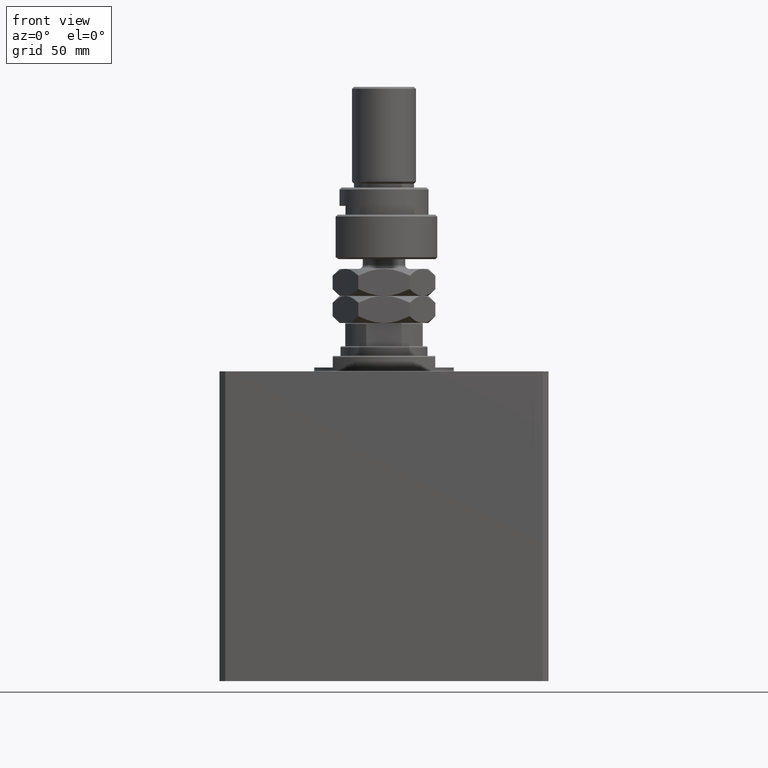
[diagram: clean part render]
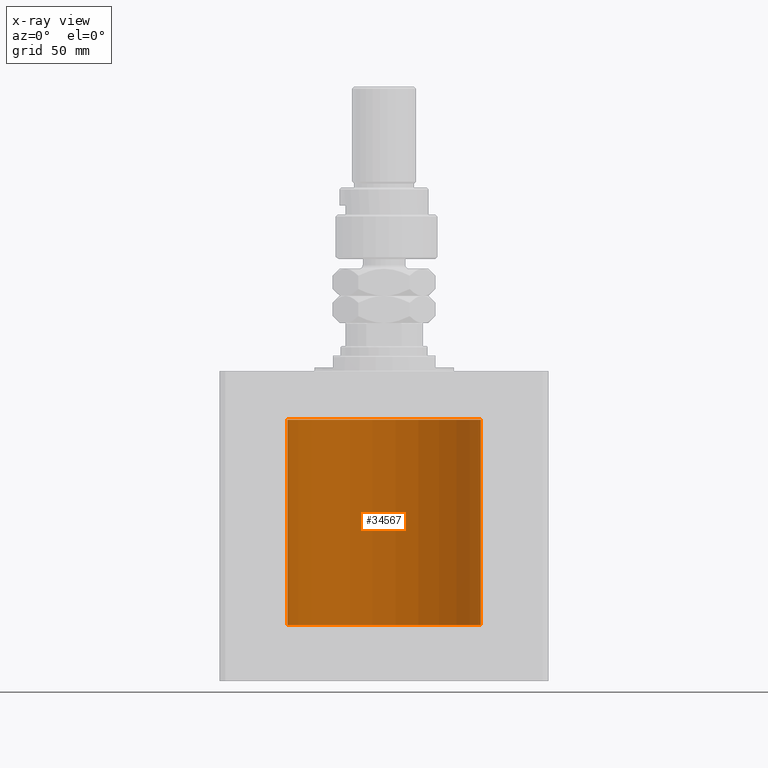
[diagram: x-ray — body ghosted, one internal face saturated and labeled with its STEP entity id]
A machine part, front view, then the same camera in x-ray: the body is ghosted and one INTERNAL B-rep face — a face not visible from any outside direction — is saturated and labeled: STEP entity #34567.
In plain terms, the highlighted cylindrical surface (partial cylindrical patch) has radius 50 mm, axis along (0, 0, 1).
Its self-contained STEP definition (entity closure, byte-faithful):
#219 = B_SPLINE_CURVE_WITH_KNOTS ( 'NONE', 3,
 ( #8694, #12773, #9161, #16369, #30332, #1490, #31032, #37991, #30561, #38467, #27652, #1256, #38226, #5563, #12073, #31264, #33921, #5087, #45205, #8925, #26710, #45677, #42069, #20213, #44967, #41365, #8463, #45917, #1731, #12306 ),
 .UNSPECIFIED., .F., .F.,
 ( 4, 2, 2, 2, 2, 2, 2, 2, 2, 2, 2, 2, 2, 2, 4 ),
 ( 1.951448278188101682E-19, 0.0003908460679639682526, 0.0007816921359279362883, 0.001172538203891904324, 0.001563384271855872360, 0.002345076407783809082, 0.003126768543711746021, 0.003517614611675714056, 0.003908460679639682092, 0.004299306747603650128, 0.004690152815567618164, 0.005080998883531586199, 0.005471844951495554235, 0.005862691019459522271, 0.006253537087423490307 ),
 .UNSPECIFIED. ) ;
#929 = CIRCLE ( 'NONE', #28533, 50.00000000000000000 ) ;
#1256 = CARTESIAN_POINT ( 'NONE',  ( -49.96216141728076821, 1.947404903100933504, -36.47512611661414184 ) ) ;
#1482 = EDGE_LOOP ( 'NONE', ( #35343, #30857, #8451, #39054, #24275, #16182, #19115, #11795, #15632 ) ) ;
#1490 = CARTESIAN_POINT ( 'NONE',  ( -49.99227820941651146, 0.8870121366447422107, -35.20266925059756602 ) ) ;
#1652 = AXIS2_PLACEMENT_3D ( 'NONE', #42496, #16559, #24712 ) ;
#1731 = CARTESIAN_POINT ( 'NONE',  ( -50.00000000000001421, 0.1305374531515847703, -38.99999999999999289 ) ) ;
#2087 = VERTEX_POINT ( 'NONE', #11383 ) ;
#2143 = DIRECTION ( 'NONE',  ( -0.000000000000000000, -0.000000000000000000, 1.000000000000000000 ) ) ;
#2549 = CARTESIAN_POINT ( 'NONE',  ( 49.97475596784978080, 1.590287868744626465, -121.7801793296755051 ) ) ;
#2626 = LINE ( 'NONE', #16794, #5386 ) ;
#3267 = CARTESIAN_POINT ( 'NONE',  ( 49.96993720661966876, 1.735115303979041013, -121.9968286013222638 ) ) ;
#3455 = CARTESIAN_POINT ( 'NONE',  ( -50.00000000000000000, -9.003882097956092458E-15, -34.99999999999999289 ) ) ;
#3724 = LINE ( 'NONE', #21732, #41449 ) ;
#4702 = VECTOR ( 'NONE', #13079, 1000.000000000000000 ) ;
#5087 = CARTESIAN_POINT ( 'NONE',  ( -49.96768660357033554, 1.798001154690308967, -37.88564223843271606 ) ) ;
#5386 = VECTOR ( 'NONE', #5989, 1000.000000000000000 ) ;
#5563 = CARTESIAN_POINT ( 'NONE',  ( -49.95998213453558634, 2.000046279225707213, -37.12975027192857880 ) ) ;
#5989 = DIRECTION ( 'NONE',  ( -0.000000000000000000, -0.000000000000000000, 1.000000000000000000 ) ) ;
#6147 = CARTESIAN_POINT ( 'NONE',  ( 49.96051123778291725, 1.986950357331387140, -122.7370861026879680 ) ) ;
#6174 = VERTEX_POINT ( 'NONE', #35915 ) ;
#6226 = CARTESIAN_POINT ( 'NONE',  ( -50.00000000000000000, 6.123233995736766085E-15, -131.0999999999999943 ) ) ;
#6387 = CARTESIAN_POINT ( 'NONE',  ( 49.99746746122490038, 0.5192910711913449884, -121.0641786156605662 ) ) ;
#6863 = CARTESIAN_POINT ( 'NONE',  ( 49.96398801900035380, 1.898003203340656198, -122.3559911791024462 ) ) ;
#8451 = ORIENTED_EDGE ( 'NONE', *, *, #12406, .T. ) ;
#8463 = CARTESIAN_POINT ( 'NONE',  ( -49.99746633848589283, 0.5194059499681270564, -38.93579253716512767 ) ) ;
#8694 = CARTESIAN_POINT ( 'NONE',  ( -50.00000000000000000, -9.003882097956092458E-15, -34.99999999999999289 ) ) ;
#8925 = CARTESIAN_POINT ( 'NONE',  ( -49.97474787754178749, 1.590541763713786860, -38.21949285922860184 ) ) ;
#9161 = CARTESIAN_POINT ( 'NONE',  ( -49.99947640732126786, 0.2621063239499291098, -35.01297064418641014 ) ) ;
#9847 = EDGE_CURVE ( 'NONE', #6174, #17873, #2626, .T. ) ;
#9862 = CARTESIAN_POINT ( 'NONE',  ( 49.97475955401471026, 1.599209500590069943, -124.2290851407538810 ) ) ;
#10458 = CARTESIAN_POINT ( 'NONE',  ( 49.95998398718716516, 2.000000000000563549, -123.0000000000000000 ) ) ;
#10588 = B_SPLINE_CURVE_WITH_KNOTS ( 'NONE', 3,
 ( #10458, #46501, #6147, #25112, #6863, #21517, #3267, #2549, #35207, #13596, #28248, #31619, #28007, #17910, #6387, #46269, #16955, #32570 ),
 .UNSPECIFIED., .F., .F.,
 ( 4, 2, 2, 2, 2, 2, 2, 2, 4 ),
 ( 0.003127478965430518024, 0.003518236230679781373, 0.003908993495929044722, 0.004299750761178307637, 0.004690508026427571420, 0.005081265291676834335, 0.005472022556926097250, 0.005862779822175361033, 0.006253537087424623948 ),
 .UNSPECIFIED. ) ;
#11383 = CARTESIAN_POINT ( 'NONE',  ( -50.00000000000000000, 6.123233995736766085E-15, -24.99999999999999289 ) ) ;
#11795 = ORIENTED_EDGE ( 'NONE', *, *, #14416, .F. ) ;
#12073 = CARTESIAN_POINT ( 'NONE',  ( -49.96050770337905789, 1.987038794023258559, -37.26226128698008466 ) ) ;
#12096 = FACE_OUTER_BOUND ( 'NONE', #1482, .T. ) ;
#12233 = VERTEX_POINT ( 'NONE', #21291 ) ;
#12306 = CARTESIAN_POINT ( 'NONE',  ( -50.00000000000000000, 6.123233989258355553E-15, -38.99999999999999289 ) ) ;
#12406 = EDGE_CURVE ( 'NONE', #21985, #33911, #15973, .T. ) ;
#12773 = CARTESIAN_POINT ( 'NONE',  ( -50.00000000000000711, 0.1321588334531834663, -34.99999999999998579 ) ) ;
#12953 = EDGE_CURVE ( 'NONE', #21985, #23443, #17659, .T. ) ;
#13079 = DIRECTION ( 'NONE',  ( -0.000000000000000000, -0.000000000000000000, 1.000000000000000000 ) ) ;
#13430 = LINE ( 'NONE', #6226, #16631 ) ;
#13469 = CARTESIAN_POINT ( 'NONE',  ( 49.99947616946592888, 0.2621653831979123828, -124.9870235173230384 ) ) ;
#13596 = CARTESIAN_POINT ( 'NONE',  ( 49.98263500888552358, 1.320952538904951457, -121.4925159043553435 ) ) ;
#13954 = CARTESIAN_POINT ( 'NONE',  ( 49.95998398718716516, 2.000000000000563549, -123.0000000000000000 ) ) ;
#14416 = EDGE_CURVE ( 'NONE', #20275, #2087, #3724, .T. ) ;
#14685 = CARTESIAN_POINT ( 'NONE',  ( 50.00000000000000000, 3.036302095833841431E-15, -125.0000000000000000 ) ) ;
#15632 = ORIENTED_EDGE ( 'NONE', *, *, #31129, .T. ) ;
#15973 = LINE ( 'NONE', #45278, #4702 ) ;
#16182 = ORIENTED_EDGE ( 'NONE', *, *, #9847, .T. ) ;
#16369 = CARTESIAN_POINT ( 'NONE',  ( -49.99748258676788026, 0.5177602892975206039, -35.06378986968200451 ) ) ;
#16559 = DIRECTION ( 'NONE',  ( 0.000000000000000000, 0.000000000000000000, 1.000000000000000000 ) ) ;
#16631 = VECTOR ( 'NONE', #2143, 1000.000000000000000 ) ;
#16794 = CARTESIAN_POINT ( 'NONE',  ( 50.00000000000000000, 0.000000000000000000, -131.0999999999999943 ) ) ;
#16955 = CARTESIAN_POINT ( 'NONE',  ( 50.00000000000000000, 0.1305077942112368161, -121.0000000000000000 ) ) ;
#17076 = CARTESIAN_POINT ( 'NONE',  ( 50.00000000000000000, 0.1321888607815028260, -125.0000000000000853 ) ) ;
#17543 = CARTESIAN_POINT ( 'NONE',  ( 49.98259270595342230, 1.322475809934058333, -124.5060172839778829 ) ) ;
#17659 = CIRCLE ( 'NONE', #1652, 50.00000000000000000 ) ;
#17792 = CARTESIAN_POINT ( 'NONE',  ( 49.99007528730422933, 1.002097354324910317, -124.7357691082803655 ) ) ;
#17873 = VERTEX_POINT ( 'NONE', #41330 ) ;
#17910 = CARTESIAN_POINT ( 'NONE',  ( 49.99599990398858296, 0.6439560014968555013, -121.1019693915201998 ) ) ;
#18648 = EDGE_CURVE ( 'NONE', #17873, #2087, #929, .T. ) ;
#19115 = ORIENTED_EDGE ( 'NONE', *, *, #18648, .T. ) ;
#19778 = DIRECTION ( 'NONE',  ( 0.000000000000000000, 0.000000000000000000, 1.000000000000000000 ) ) ;
#20213 = CARTESIAN_POINT ( 'NONE',  ( -49.99004874905787688, 1.003375892571688910, -38.73499659467171341 ) ) ;
#20275 = VERTEX_POINT ( 'NONE', #3455 ) ;
#21291 = CARTESIAN_POINT ( 'NONE',  ( -50.00000000000000000, 6.123233989258355553E-15, -38.99999999999999289 ) ) ;
#21517 = CARTESIAN_POINT ( 'NONE',  ( 49.96769480970100119, 1.797773714148178881, -122.1139000090266649 ) ) ;
#21732 = CARTESIAN_POINT ( 'NONE',  ( -50.00000000000000000, 6.123233995736766085E-15, -131.0999999999999943 ) ) ;
#21985 = VERTEX_POINT ( 'NONE', #40815 ) ;
#23332 = CARTESIAN_POINT ( 'NONE',  ( 49.99598718814008436, 0.6449352407546075083, -124.8976971177264659 ) ) ;
#23443 = VERTEX_POINT ( 'NONE', #37660 ) ;
#23603 = CARTESIAN_POINT ( 'NONE',  ( 0.000000000000000000, 0.000000000000000000, -24.99999999999999289 ) ) ;
#23829 = CYLINDRICAL_SURFACE ( 'NONE', #44037, 50.00000000000000000 ) ;
#24275 = ORIENTED_EDGE ( 'NONE', *, *, #41754, .T. ) ;
#24712 = DIRECTION ( 'NONE',  ( 1.000000000000000000, 0.000000000000000000, 0.000000000000000000 ) ) ;
#25112 = CARTESIAN_POINT ( 'NONE',  ( 49.96251892914505532, 1.935809163618958051, -122.4806366185916033 ) ) ;
#26710 = CARTESIAN_POINT ( 'NONE',  ( -49.97734518528593384, 1.507874855161120076, -38.32050907330479106 ) ) ;
#26897 = B_SPLINE_CURVE_WITH_KNOTS ( 'NONE', 3,
 ( #42531, #17076, #13469, #41597, #23332, #29085, #17792, #28119, #17543, #9862, #32454, #35565, #39169, #13954 ),
 .UNSPECIFIED., .F., .F.,
 ( 4, 2, 2, 2, 2, 2, 4 ),
 ( 2.950676318800673392E-18, 0.0003909348706788099283, 0.0007818697413576169292, 0.001172804612036423876, 0.001563739482715231039, 0.002345609224072874206, 0.003127478965430518024 ),
 .UNSPECIFIED. ) ;
#26979 = CARTESIAN_POINT ( 'NONE',  ( 0.000000000000000000, 0.000000000000000000, -131.0999999999999943 ) ) ;
#27051 = CARTESIAN_POINT ( 'NONE',  ( 49.95998398718716516, 2.000000000000563549, -123.0000000000000000 ) ) ;
#27652 = CARTESIAN_POINT ( 'NONE',  ( -49.96953708402610062, 1.747948211813102892, -35.99374183287712725 ) ) ;
#27713 = EDGE_CURVE ( 'NONE', #23443, #12233, #13430, .T. ) ;
#28007 = CARTESIAN_POINT ( 'NONE',  ( 49.99229103891970993, 0.8862970221311291530, -121.2023134001857301 ) ) ;
#28119 = CARTESIAN_POINT ( 'NONE',  ( 49.98524326844814425, 1.219541607305973940, -124.5905382022621524 ) ) ;
#28248 = CARTESIAN_POINT ( 'NONE',  ( 49.98523696312182096, 1.219762141829697999, -121.4096701367431876 ) ) ;
#28533 = AXIS2_PLACEMENT_3D ( 'NONE', #23603, #19778, #44540 ) ;
#29085 = CARTESIAN_POINT ( 'NONE',  ( 49.99227494580979680, 0.8871990329080483573, -124.7972405769406237 ) ) ;
#30332 = CARTESIAN_POINT ( 'NONE',  ( -49.99598898362840771, 0.6447919409892277631, -35.10225615370830354 ) ) ;
#30561 = CARTESIAN_POINT ( 'NONE',  ( -49.98259925701036366, 1.322227939264704055, -35.49376754264949341 ) ) ;
#30857 = ORIENTED_EDGE ( 'NONE', *, *, #12953, .F. ) ;
#31032 = CARTESIAN_POINT ( 'NONE',  ( -49.99007938266582585, 1.001891274688315958, -35.26411427938287346 ) ) ;
#31129 = EDGE_CURVE ( 'NONE', #20275, #12233, #219, .T. ) ;
#31264 = CARTESIAN_POINT ( 'NONE',  ( -49.96251288907240706, 1.935964606501246799, -37.51879205273049678 ) ) ;
#31619 = CARTESIAN_POINT ( 'NONE',  ( 49.99005286890574951, 1.003169031662882960, -121.2648859834236248 ) ) ;
#32454 = CARTESIAN_POINT ( 'NONE',  ( 49.96952841668769452, 1.748193601366643035, -124.0058470866194966 ) ) ;
#32570 = CARTESIAN_POINT ( 'NONE',  ( 50.00000000000000000, -6.476745247090812175E-24, -121.0000000000000000 ) ) ;
#33724 = EDGE_CURVE ( 'NONE', #33911, #36374, #26897, .T. ) ;
#33911 = VERTEX_POINT ( 'NONE', #14685 ) ;
#33921 = CARTESIAN_POINT ( 'NONE',  ( -49.96398106625520086, 1.898185627324846303, -37.64347622409935212 ) ) ;
#34567 = ADVANCED_FACE ( 'NONE', ( #12096 ), #23829, .F. ) ;
#35207 = CARTESIAN_POINT ( 'NONE',  ( 49.97735290927441554, 1.507618726120014019, -121.6792011185220730 ) ) ;
#35343 = ORIENTED_EDGE ( 'NONE', *, *, #27713, .F. ) ;
#35565 = CARTESIAN_POINT ( 'NONE',  ( 49.96215500645250529, 1.947567242801464982, -123.5243005476701228 ) ) ;
#35915 = CARTESIAN_POINT ( 'NONE',  ( 50.00000000000000000, -6.476745247090812175E-24, -121.0000000000000000 ) ) ;
#36138 = DIRECTION ( 'NONE',  ( -0.000000000000000000, -0.000000000000000000, 1.000000000000000000 ) ) ;
#36374 = VERTEX_POINT ( 'NONE', #27051 ) ;
#37660 = CARTESIAN_POINT ( 'NONE',  ( -50.00000000000000000, 6.123233995736766085E-15, -131.0999999999999943 ) ) ;
#37991 = CARTESIAN_POINT ( 'NONE',  ( -49.98524905102831184, 1.219303128102697586, -35.40928153240807319 ) ) ;
#38226 = CARTESIAN_POINT ( 'NONE',  ( -49.95998770768563446, 1.999907061972440614, -36.73836523183381786 ) ) ;
#38467 = CARTESIAN_POINT ( 'NONE',  ( -49.97476780406313424, 1.598950834465297177, -35.77059039179120958 ) ) ;
#38492 = DIRECTION ( 'NONE',  ( -0.000000000000000000, -0.000000000000000000, 1.000000000000000000 ) ) ;
#39054 = ORIENTED_EDGE ( 'NONE', *, *, #33724, .T. ) ;
#39169 = CARTESIAN_POINT ( 'NONE',  ( 49.95998398718717937, 2.000000000000561773, -123.2609875752831101 ) ) ;
#40815 = CARTESIAN_POINT ( 'NONE',  ( 50.00000000000000000, 0.000000000000000000, -131.0999999999999943 ) ) ;
#41330 = CARTESIAN_POINT ( 'NONE',  ( 50.00000000000000000, 0.000000000000000000, -24.99999999999999289 ) ) ;
#41365 = CARTESIAN_POINT ( 'NONE',  ( -49.99599814809604226, 0.6440968921210813436, -38.89798495722402549 ) ) ;
#41449 = VECTOR ( 'NONE', #36138, 1000.000000000000000 ) ;
#41597 = CARTESIAN_POINT ( 'NONE',  ( 49.99748146545036320, 0.5178754880116751558, -124.9361813255629841 ) ) ;
#41754 = EDGE_CURVE ( 'NONE', #36374, #6174, #10588, .T. ) ;
#42069 = CARTESIAN_POINT ( 'NONE',  ( -49.98523123236354593, 1.219998263164736807, -38.59015112589698759 ) ) ;
#42496 = CARTESIAN_POINT ( 'NONE',  ( 0.000000000000000000, 0.000000000000000000, -131.0999999999999943 ) ) ;
#42531 = CARTESIAN_POINT ( 'NONE',  ( 50.00000000000000000, 3.036302095833841431E-15, -125.0000000000000000 ) ) ;
#44037 = AXIS2_PLACEMENT_3D ( 'NONE', #26979, #38492, #45942 ) ;
#44540 = DIRECTION ( 'NONE',  ( 1.000000000000000000, 0.000000000000000000, 0.000000000000000000 ) ) ;
#44967 = CARTESIAN_POINT ( 'NONE',  ( -49.99228773711749341, 0.8864865707480856782, -38.79759541170199100 ) ) ;
#45205 = CARTESIAN_POINT ( 'NONE',  ( -49.96992887184637055, 1.735355026673580214, -38.00276062309308855 ) ) ;
#45278 = CARTESIAN_POINT ( 'NONE',  ( 50.00000000000000000, 0.000000000000000000, -131.0999999999999943 ) ) ;
#45677 = CARTESIAN_POINT ( 'NONE',  ( -49.98262832829516356, 1.321205413082626068, -38.50726475708437135 ) ) ;
#45917 = CARTESIAN_POINT ( 'NONE',  ( -49.99947195246410558, 0.2631107820817846776, -38.98691922436691470 ) ) ;
#45942 = DIRECTION ( 'NONE',  ( 1.000000000000000000, 0.000000000000000000, 0.000000000000000000 ) ) ;
#46269 = CARTESIAN_POINT ( 'NONE',  ( 49.99947219664575471, 0.2630509640965526530, -121.0130747777099032 ) ) ;
#46501 = CARTESIAN_POINT ( 'NONE',  ( 49.95998398718716516, 2.000000000000564881, -122.8695654969272084 ) ) ;